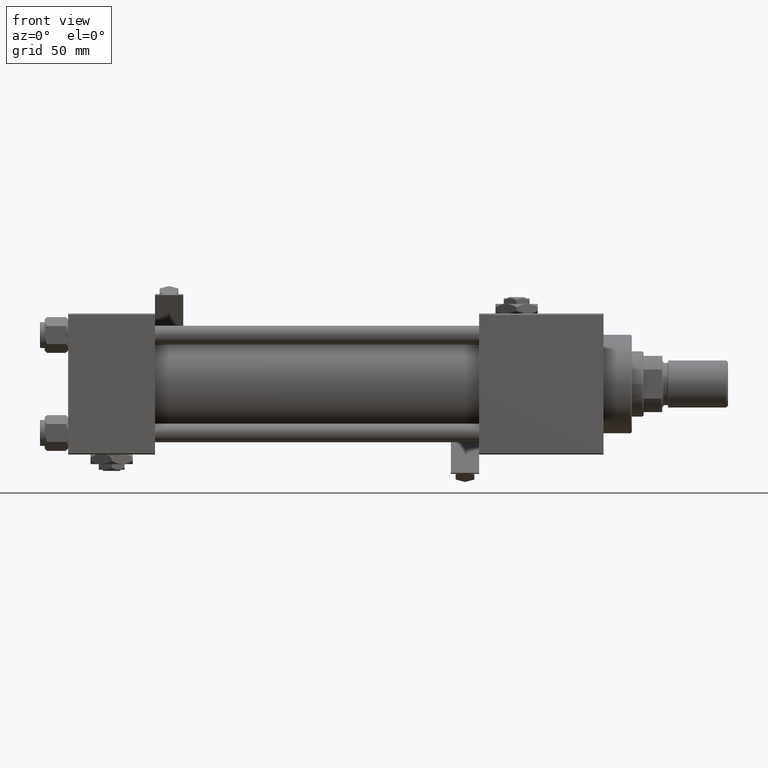
[diagram: clean part render]
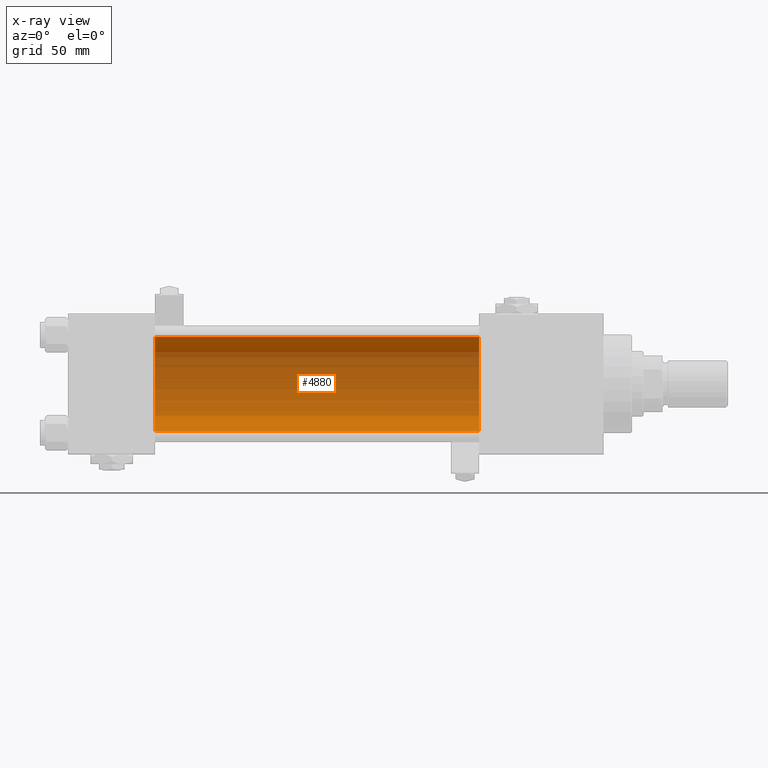
[diagram: x-ray — body ghosted, one internal face saturated and labeled with its STEP entity id]
A machine part, front view, then the same camera in x-ray: the body is ghosted and one INTERNAL B-rep face — a face not visible from any outside direction — is saturated and labeled: STEP entity #4880.
In plain terms, the highlighted cylindrical surface (partial cylindrical patch) has radius 20 mm, axis along (-1, -0, -0).
Its self-contained STEP definition (entity closure, byte-faithful):
#1009 = CARTESIAN_POINT ( 'NONE',  ( 175.0000000000000284, -1.527916156705042519E-16, -20.00000000000000000 ) ) ;
#2267 = VERTEX_POINT ( 'NONE', #10972 ) ;
#4880 = ADVANCED_FACE ( 'NONE', ( #19487 ), #48592, .F. ) ;
#7185 = VECTOR ( 'NONE', #22151, 1000.000000000000000 ) ;
#9279 = ORIENTED_EDGE ( 'NONE', *, *, #41035, .F. ) ;
#9774 = CIRCLE ( 'NONE', #29711, 20.00000000000000000 ) ;
#10449 = CARTESIAN_POINT ( 'NONE',  ( 175.0000000000000284, -2.602085213965210642E-15, 20.00000000000000000 ) ) ;
#10756 = DIRECTION ( 'NONE',  ( 0.000000000000000000, 0.000000000000000000, -1.000000000000000000 ) ) ;
#10972 = CARTESIAN_POINT ( 'NONE',  ( 37.00000000000000000, -1.527916156705042519E-16, -20.00000000000000000 ) ) ;
#14834 = CARTESIAN_POINT ( 'NONE',  ( 175.0000000000000284, -2.602085213965210642E-15, 0.000000000000000000 ) ) ;
#16531 = EDGE_CURVE ( 'NONE', #2267, #47338, #33193, .T. ) ;
#17361 = ORIENTED_EDGE ( 'NONE', *, *, #43185, .T. ) ;
#17547 = AXIS2_PLACEMENT_3D ( 'NONE', #39065, #34977, #22742 ) ;
#17625 = EDGE_CURVE ( 'NONE', #42135, #47338, #34657, .T. ) ;
#19487 = FACE_OUTER_BOUND ( 'NONE', #52228, .T. ) ;
#19587 = CARTESIAN_POINT ( 'NONE',  ( 37.00000000000000000, -2.602085213965210642E-15, 20.00000000000000000 ) ) ;
#19722 = AXIS2_PLACEMENT_3D ( 'NONE', #43709, #35271, #27369 ) ;
#22151 = DIRECTION ( 'NONE',  ( -1.000000000000000000, -0.000000000000000000, -0.000000000000000000 ) ) ;
#22742 = DIRECTION ( 'NONE',  ( 0.000000000000000000, 0.000000000000000000, -1.000000000000000000 ) ) ;
#27369 = DIRECTION ( 'NONE',  ( 0.000000000000000000, 0.000000000000000000, 1.000000000000000000 ) ) ;
#29711 = AXIS2_PLACEMENT_3D ( 'NONE', #14834, #44202, #10756 ) ;
#30701 = DIRECTION ( 'NONE',  ( -1.000000000000000000, -0.000000000000000000, -0.000000000000000000 ) ) ;
#31677 = VERTEX_POINT ( 'NONE', #1009 ) ;
#33193 = CIRCLE ( 'NONE', #17547, 20.00000000000000000 ) ;
#34657 = LINE ( 'NONE', #10449, #7185 ) ;
#34977 = DIRECTION ( 'NONE',  ( 1.000000000000000000, 0.000000000000000000, 0.000000000000000000 ) ) ;
#35271 = DIRECTION ( 'NONE',  ( -1.000000000000000000, -0.000000000000000000, -0.000000000000000000 ) ) ;
#39065 = CARTESIAN_POINT ( 'NONE',  ( 37.00000000000000000, -2.602085213965210642E-15, 0.000000000000000000 ) ) ;
#39378 = CARTESIAN_POINT ( 'NONE',  ( 175.0000000000000284, -2.602085213965210642E-15, 20.00000000000000000 ) ) ;
#40666 = ORIENTED_EDGE ( 'NONE', *, *, #17625, .T. ) ;
#41035 = EDGE_CURVE ( 'NONE', #31677, #2267, #51393, .T. ) ;
#42135 = VERTEX_POINT ( 'NONE', #39378 ) ;
#42142 = CARTESIAN_POINT ( 'NONE',  ( 175.0000000000000284, -1.527916156705042519E-16, -20.00000000000000000 ) ) ;
#43185 = EDGE_CURVE ( 'NONE', #31677, #42135, #9774, .T. ) ;
#43709 = CARTESIAN_POINT ( 'NONE',  ( 175.0000000000000284, -2.602085213965210642E-15, 0.000000000000000000 ) ) ;
#44202 = DIRECTION ( 'NONE',  ( 1.000000000000000000, 0.000000000000000000, 0.000000000000000000 ) ) ;
#47338 = VERTEX_POINT ( 'NONE', #19587 ) ;
#48592 = CYLINDRICAL_SURFACE ( 'NONE', #19722, 20.00000000000000000 ) ;
#49647 = VECTOR ( 'NONE', #30701, 1000.000000000000000 ) ;
#51393 = LINE ( 'NONE', #42142, #49647 ) ;
#52228 = EDGE_LOOP ( 'NONE', ( #9279, #17361, #40666, #52280 ) ) ;
#52280 = ORIENTED_EDGE ( 'NONE', *, *, #16531, .F. ) ;